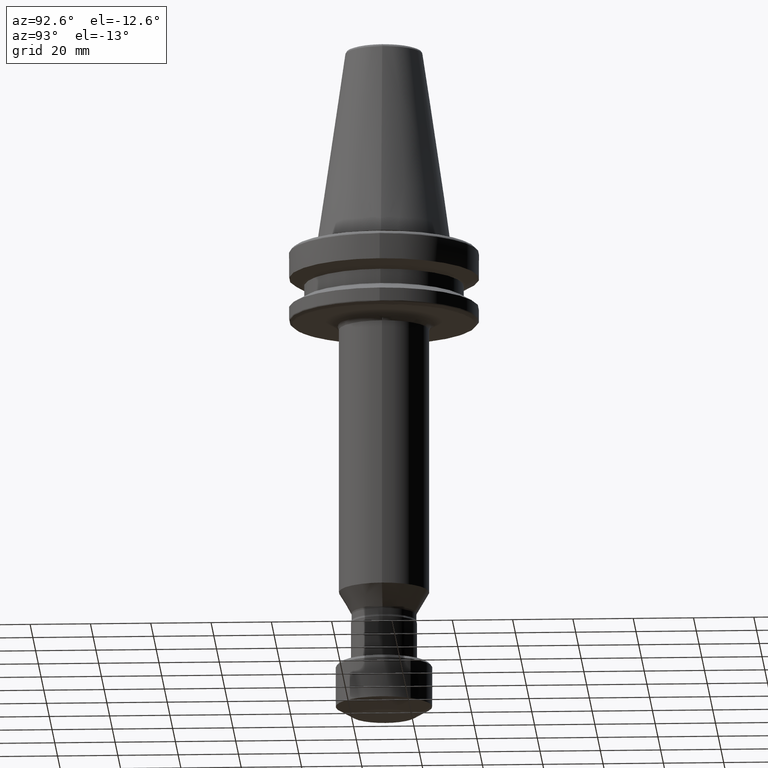
[diagram: clean part render]
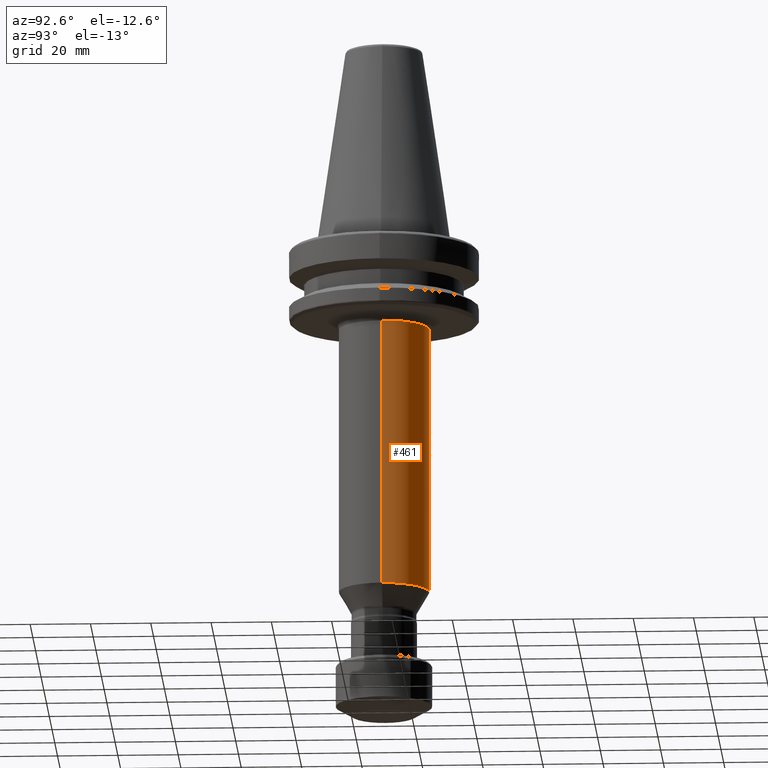
[diagram: same view with one face highlighted and labeled with its STEP entity id]
A machine part, auxiliary view. The second image highlights one B-rep face of the part: STEP entity #461.
In plain terms, the highlighted cylindrical surface (partial cylindrical patch) has radius 15 mm, axis along (0, 0, 1).
Its self-contained STEP definition (entity closure, byte-faithful):
#230 = CARTESIAN_POINT ( 'NONE',  ( 119.3965867387900100, 130.0629772186810600, 41.19045267005400000 ) ) ;
#298 = CIRCLE ( 'NONE', #1652, 15.00000000000001400 ) ;
#362 = CARTESIAN_POINT ( 'NONE',  ( 134.3965867387900100, 130.0629772184116700, 130.2292367390819300 ) ) ;
#461 = ADVANCED_FACE ( 'NONE', ( #1177 ), #1156, .T. ) ;
#557 = ORIENTED_EDGE ( 'NONE', *, *, #2863, .F. ) ;
#597 = CIRCLE ( 'NONE', #1456, 15.00000000000001400 ) ;
#620 = LINE ( 'NONE', #1423, #658 ) ;
#658 = VECTOR ( 'NONE', #2339, 1000.000000000000000 ) ;
#720 = CARTESIAN_POINT ( 'NONE',  ( 134.3965867387899800, 130.0629772186810600, 41.19045267005400000 ) ) ;
#794 = VECTOR ( 'NONE', #3620, 1000.000000000000000 ) ;
#836 = LINE ( 'NONE', #1637, #794 ) ;
#1156 = CYLINDRICAL_SURFACE ( 'NONE', #3474, 15.00000000000001400 ) ;
#1177 = FACE_OUTER_BOUND ( 'NONE', #3735, .T. ) ;
#1417 = EDGE_CURVE ( 'NONE', #2497, #1877, #836, .T. ) ;
#1423 = CARTESIAN_POINT ( 'NONE',  ( 134.3965867387900100, 130.0629772186810600, 41.19045267005400000 ) ) ;
#1444 = VERTEX_POINT ( 'NONE', #720 ) ;
#1456 = AXIS2_PLACEMENT_3D ( 'NONE', #3214, #1469, #3480 ) ;
#1469 = DIRECTION ( 'NONE',  ( -0.0000000000000000000, -0.0000000000000000000, -1.000000000000000000 ) ) ;
#1637 = CARTESIAN_POINT ( 'NONE',  ( 104.3965867387900100, 130.0629772186810600, 41.19045267005400000 ) ) ;
#1652 = AXIS2_PLACEMENT_3D ( 'NONE', #1791, #3738, #2092 ) ;
#1705 = ORIENTED_EDGE ( 'NONE', *, *, #2198, .F. ) ;
#1720 = VERTEX_POINT ( 'NONE', #362 ) ;
#1791 = CARTESIAN_POINT ( 'NONE',  ( 119.3965867387900100, 130.0629772186810600, 130.2292367390540200 ) ) ;
#1877 = VERTEX_POINT ( 'NONE', #1884 ) ;
#1884 = CARTESIAN_POINT ( 'NONE',  ( 104.3965867387900100, 130.0629772168350900, 130.2292367390819300 ) ) ;
#1998 = EDGE_CURVE ( 'NONE', #1444, #1720, #620, .T. ) ;
#2065 = DIRECTION ( 'NONE',  ( 1.000000000000000000, 0.0000000000000000000, 0.0000000000000000000 ) ) ;
#2092 = DIRECTION ( 'NONE',  ( 1.000000000000000000, 0.0000000000000000000, 0.0000000000000000000 ) ) ;
#2198 = EDGE_CURVE ( 'NONE', #2497, #1444, #597, .T. ) ;
#2339 = DIRECTION ( 'NONE',  ( 0.0000000000000000000, 0.0000000000000000000, 1.000000000000000000 ) ) ;
#2373 = DIRECTION ( 'NONE',  ( 0.0000000000000000000, 0.0000000000000000000, 1.000000000000000000 ) ) ;
#2497 = VERTEX_POINT ( 'NONE', #3098 ) ;
#2636 = ORIENTED_EDGE ( 'NONE', *, *, #1998, .F. ) ;
#2682 = ORIENTED_EDGE ( 'NONE', *, *, #1417, .T. ) ;
#2863 = EDGE_CURVE ( 'NONE', #1720, #1877, #298, .T. ) ;
#3098 = CARTESIAN_POINT ( 'NONE',  ( 104.3965867387900100, 130.0629772186810600, 41.19045267005400000 ) ) ;
#3214 = CARTESIAN_POINT ( 'NONE',  ( 119.3965867387900100, 130.0629772186810600, 41.19045267005400000 ) ) ;
#3474 = AXIS2_PLACEMENT_3D ( 'NONE', #230, #2373, #2065 ) ;
#3480 = DIRECTION ( 'NONE',  ( 1.000000000000000000, 0.0000000000000000000, 0.0000000000000000000 ) ) ;
#3620 = DIRECTION ( 'NONE',  ( 0.0000000000000000000, 0.0000000000000000000, 1.000000000000000000 ) ) ;
#3735 = EDGE_LOOP ( 'NONE', ( #1705, #2682, #557, #2636 ) ) ;
#3738 = DIRECTION ( 'NONE',  ( 0.0000000000000000000, 0.0000000000000000000, 1.000000000000000000 ) ) ;